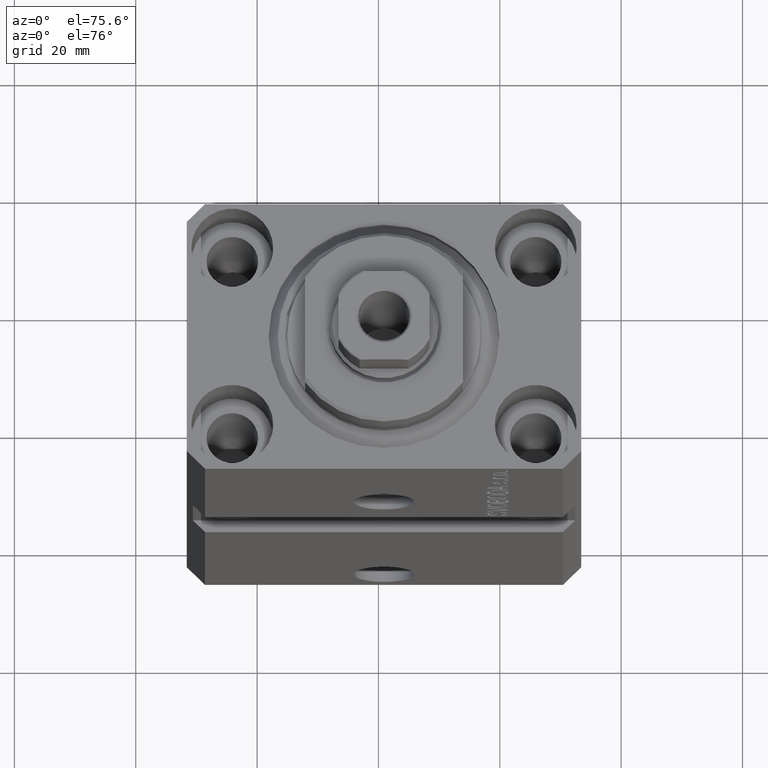
[diagram: clean part render]
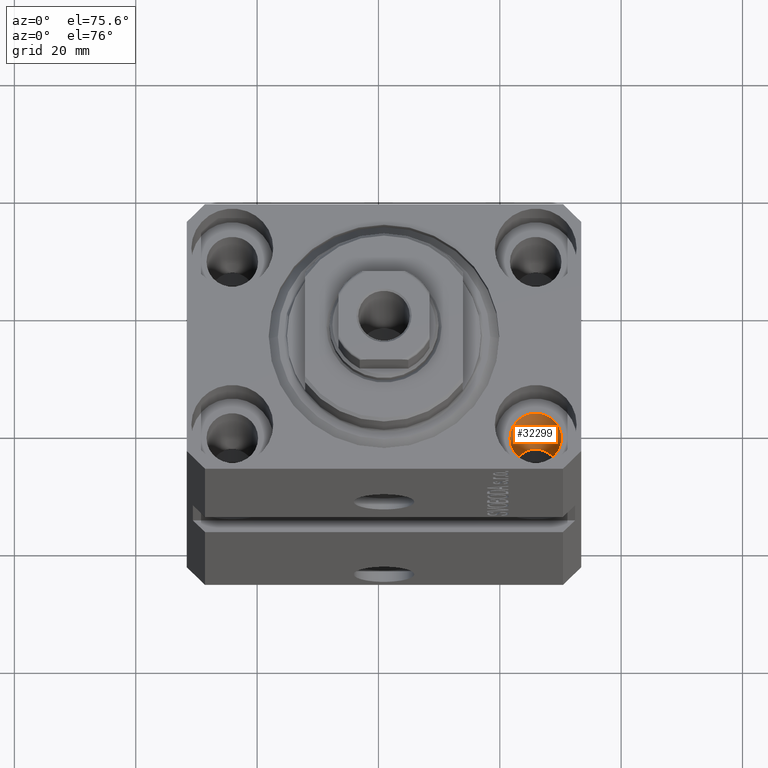
[diagram: same view with one face highlighted and labeled with its STEP entity id]
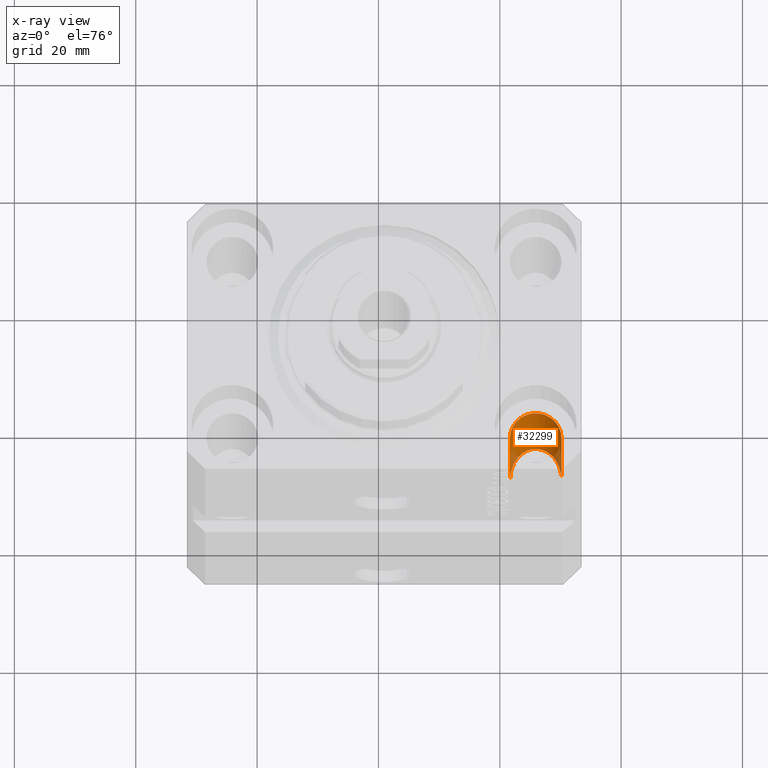
[diagram: x-ray of the same camera — body ghosted, the highlighted face saturated]
A machine part, auxiliary view. The second image highlights one B-rep face of the part: STEP entity #32299.
The next image is the same camera in x-ray: the body ghosted, the highlighted face saturated — about 11% of this face is hidden behind the body in this view.
In plain terms, the highlighted cylindrical surface (edge-blend (fillet) strip) has radius 4.25 mm, axis along (0, 0, 1).
Its self-contained STEP definition (entity closure, byte-faithful):
#310 = VERTEX_POINT ( 'NONE', #26191 ) ;
#573 = CARTESIAN_POINT ( 'NONE',  ( 20.75000000002254197, -15.00000000000000000, -77.00000000000000000 ) ) ;
#3789 = ORIENTED_EDGE ( 'NONE', *, *, #33508, .F. ) ;
#4117 = CARTESIAN_POINT ( 'NONE',  ( 20.75000000001675104, -15.00000000000000000, -36.99999999999999289 ) ) ;
#4605 = EDGE_CURVE ( 'NONE', #30437, #40389, #29265, .T. ) ;
#4685 = CARTESIAN_POINT ( 'NONE',  ( 25.00000000000000355, -15.00000000000000000, -77.00000000000000000 ) ) ;
#5287 = VECTOR ( 'NONE', #32018, 1000.000000000000000 ) ;
#5936 = ORIENTED_EDGE ( 'NONE', *, *, #14567, .T. ) ;
#9045 = CARTESIAN_POINT ( 'NONE',  ( 29.24999999998326672, -15.00000000000000000, -36.99999999999999289 ) ) ;
#9500 = CARTESIAN_POINT ( 'NONE',  ( 20.75000000001674749, -6.500000000033489655, -28.50000000003348077 ) ) ;
#13865 = CARTESIAN_POINT ( 'NONE',  ( 29.24999999998326672, -15.00000000000000000, -36.99999999999999289 ) ) ;
#14567 = EDGE_CURVE ( 'NONE', #40389, #33975, #22701, .T. ) ;
#15302 = AXIS2_PLACEMENT_3D ( 'NONE', #4685, #35918, #28265 ) ;
#17762 = CIRCLE ( 'NONE', #23495, 4.249999999977462473 ) ;
#17912 = VECTOR ( 'NONE', #33486, 1000.000000000000000 ) ;
#18322 = LINE ( 'NONE', #573, #5287 ) ;
#20141 = ORIENTED_EDGE ( 'NONE', *, *, #4605, .T. ) ;
#22197 = EDGE_LOOP ( 'NONE', ( #3789, #20141, #5936, #42271 ) ) ;
#22207 = CYLINDRICAL_SURFACE ( 'NONE', #15302, 4.249999999977462473 ) ;
#22701 = LINE ( 'NONE', #36416, #17912 ) ;
#23495 = AXIS2_PLACEMENT_3D ( 'NONE', #25217, #42287, #38708 ) ;
#25217 = CARTESIAN_POINT ( 'NONE',  ( 25.00000000000000355, -15.00000000000000000, -9.000000000000000000 ) ) ;
#26191 = CARTESIAN_POINT ( 'NONE',  ( 20.75000000002254197, -15.00000000000000000, -9.000000000000000000 ) ) ;
#28265 = DIRECTION ( 'NONE',  ( 1.000000000000000000, 0.000000000000000000, 0.000000000000000000 ) ) ;
#29245 = CARTESIAN_POINT ( 'NONE',  ( 20.75000000001675104, -15.00000000000000000, -36.99999999999999289 ) ) ;
#29265 =( BOUNDED_CURVE ( )  B_SPLINE_CURVE ( 3, ( #29245, #9500, #39810, #9045 ),
 .UNSPECIFIED., .F., .F. ) 
 B_SPLINE_CURVE_WITH_KNOTS ( ( 4, 4 ),
 ( 4.712388980384689674, 7.853981633974482790 ),
 .UNSPECIFIED. ) 
 CURVE ( )  GEOMETRIC_REPRESENTATION_ITEM ( )  RATIONAL_B_SPLINE_CURVE ( ( 1.000000000000000000, 0.3333333333333333703, 0.3333333333333333703, 1.000000000000000000 ) ) 
 REPRESENTATION_ITEM ( '' )  );
#30437 = VERTEX_POINT ( 'NONE', #4117 ) ;
#32018 = DIRECTION ( 'NONE',  ( -0.000000000000000000, -0.000000000000000000, 1.000000000000000000 ) ) ;
#32299 = ADVANCED_FACE ( 'NONE', ( #41970 ), #22207, .F. ) ;
#33486 = DIRECTION ( 'NONE',  ( -0.000000000000000000, -0.000000000000000000, 1.000000000000000000 ) ) ;
#33508 = EDGE_CURVE ( 'NONE', #30437, #310, #18322, .T. ) ;
#33975 = VERTEX_POINT ( 'NONE', #37299 ) ;
#35918 = DIRECTION ( 'NONE',  ( -0.000000000000000000, -0.000000000000000000, 1.000000000000000000 ) ) ;
#36416 = CARTESIAN_POINT ( 'NONE',  ( 29.24999999997746869, -15.00000000000000000, -77.00000000000000000 ) ) ;
#37299 = CARTESIAN_POINT ( 'NONE',  ( 29.24999999997746869, -15.00000000000000000, -9.000000000000000000 ) ) ;
#38708 = DIRECTION ( 'NONE',  ( 1.000000000000000000, 0.000000000000000000, 0.000000000000000000 ) ) ;
#39810 = CARTESIAN_POINT ( 'NONE',  ( 29.24999999998327027, -6.500000000033487879, -28.50000000003348077 ) ) ;
#40389 = VERTEX_POINT ( 'NONE', #13865 ) ;
#41970 = FACE_OUTER_BOUND ( 'NONE', #22197, .T. ) ;
#42271 = ORIENTED_EDGE ( 'NONE', *, *, #42830, .T. ) ;
#42287 = DIRECTION ( 'NONE',  ( 0.000000000000000000, 0.000000000000000000, 1.000000000000000000 ) ) ;
#42830 = EDGE_CURVE ( 'NONE', #33975, #310, #17762, .T. ) ;